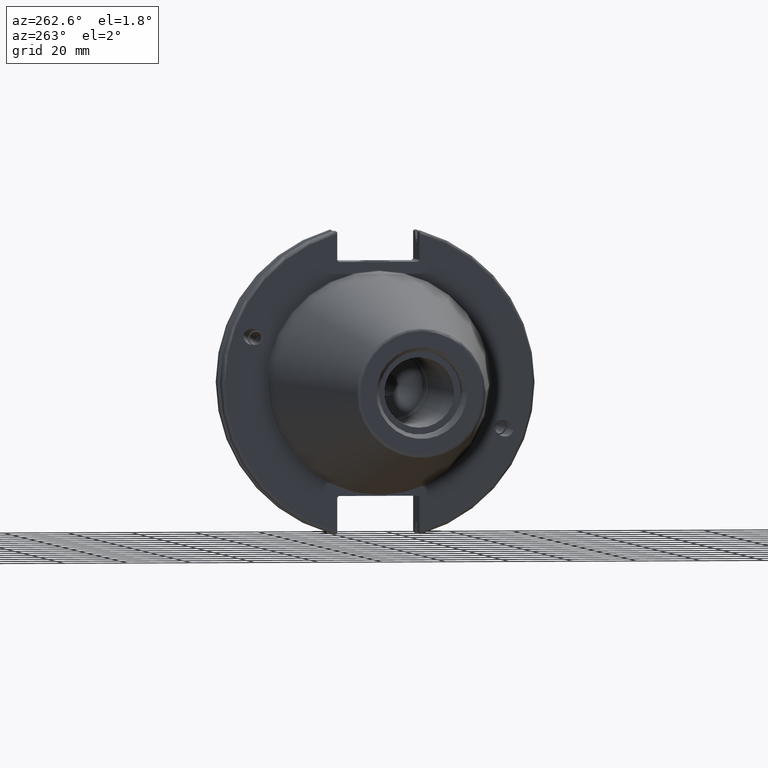
[diagram: clean part render]
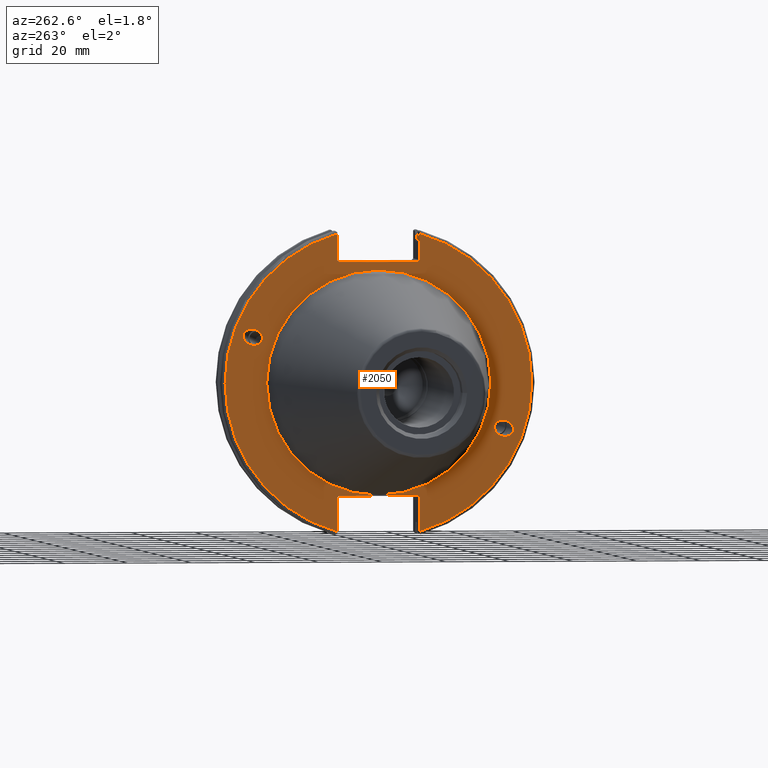
[diagram: same view with one face highlighted and labeled with its STEP entity id]
A machine part, auxiliary view. The second image highlights one B-rep face of the part: STEP entity #2050.
In plain terms, the highlighted planar face has unit normal (-1, 0, 0).
Its self-contained STEP definition (entity closure, byte-faithful):
#31=ELLIPSE('',#2247,3.05193647190364,2.5);
#32=ELLIPSE('',#2286,3.05193647190364,2.5);
#44=PLANE('',#2304);
#117=FACE_BOUND('',#335,.T.);
#118=FACE_BOUND('',#336,.T.);
#119=FACE_BOUND('',#337,.T.);
#219=FACE_OUTER_BOUND('',#334,.T.);
#334=EDGE_LOOP('',(#1687,#1688,#1689,#1690,#1691,#1692,#1693,#1694,#1695,
#1696,#1697,#1698));
#335=EDGE_LOOP('',(#1699));
#336=EDGE_LOOP('',(#1700));
#337=EDGE_LOOP('',(#1701,#1702));
#429=LINE('',#3828,#530);
#430=LINE('',#3830,#531);
#431=LINE('',#3832,#532);
#432=LINE('',#3834,#533);
#433=LINE('',#3836,#534);
#434=LINE('',#3840,#535);
#435=LINE('',#3842,#536);
#436=LINE('',#3844,#537);
#437=LINE('',#3846,#538);
#438=LINE('',#3847,#539);
#530=VECTOR('',#2811,10.);
#531=VECTOR('',#2812,10.);
#532=VECTOR('',#2813,10.);
#533=VECTOR('',#2814,10.);
#534=VECTOR('',#2815,10.);
#535=VECTOR('',#2818,10.);
#536=VECTOR('',#2819,10.);
#537=VECTOR('',#2820,10.);
#538=VECTOR('',#2821,10.);
#539=VECTOR('',#2822,10.);
#714=CIRCLE('',#2300,35.125);
#715=CIRCLE('',#2301,35.125);
#718=CIRCLE('',#2305,48.2125);
#719=CIRCLE('',#2306,48.2125);
#859=VERTEX_POINT('',#3519);
#902=VERTEX_POINT('',#3788);
#911=VERTEX_POINT('',#3815);
#912=VERTEX_POINT('',#3817);
#914=VERTEX_POINT('',#3824);
#915=VERTEX_POINT('',#3825);
#916=VERTEX_POINT('',#3827);
#917=VERTEX_POINT('',#3829);
#918=VERTEX_POINT('',#3831);
#919=VERTEX_POINT('',#3833);
#920=VERTEX_POINT('',#3835);
#921=VERTEX_POINT('',#3837);
#922=VERTEX_POINT('',#3839);
#923=VERTEX_POINT('',#3841);
#924=VERTEX_POINT('',#3843);
#925=VERTEX_POINT('',#3845);
#1122=EDGE_CURVE('',#859,#859,#31,.T.);
#1178=EDGE_CURVE('',#902,#902,#32,.T.);
#1191=EDGE_CURVE('',#911,#912,#714,.T.);
#1192=EDGE_CURVE('',#912,#911,#715,.T.);
#1195=EDGE_CURVE('',#914,#915,#718,.T.);
#1196=EDGE_CURVE('',#914,#916,#429,.T.);
#1197=EDGE_CURVE('',#917,#916,#430,.T.);
#1198=EDGE_CURVE('',#917,#918,#431,.T.);
#1199=EDGE_CURVE('',#919,#918,#432,.T.);
#1200=EDGE_CURVE('',#919,#920,#433,.T.);
#1201=EDGE_CURVE('',#921,#920,#719,.T.);
#1202=EDGE_CURVE('',#921,#922,#434,.T.);
#1203=EDGE_CURVE('',#923,#922,#435,.T.);
#1204=EDGE_CURVE('',#923,#924,#436,.T.);
#1205=EDGE_CURVE('',#925,#924,#437,.T.);
#1206=EDGE_CURVE('',#925,#915,#438,.T.);
#1687=ORIENTED_EDGE('',*,*,#1195,.F.);
#1688=ORIENTED_EDGE('',*,*,#1196,.T.);
#1689=ORIENTED_EDGE('',*,*,#1197,.F.);
#1690=ORIENTED_EDGE('',*,*,#1198,.T.);
#1691=ORIENTED_EDGE('',*,*,#1199,.F.);
#1692=ORIENTED_EDGE('',*,*,#1200,.T.);
#1693=ORIENTED_EDGE('',*,*,#1201,.F.);
#1694=ORIENTED_EDGE('',*,*,#1202,.T.);
#1695=ORIENTED_EDGE('',*,*,#1203,.F.);
#1696=ORIENTED_EDGE('',*,*,#1204,.T.);
#1697=ORIENTED_EDGE('',*,*,#1205,.F.);
#1698=ORIENTED_EDGE('',*,*,#1206,.T.);
#1699=ORIENTED_EDGE('',*,*,#1122,.T.);
#1700=ORIENTED_EDGE('',*,*,#1178,.T.);
#1701=ORIENTED_EDGE('',*,*,#1192,.F.);
#1702=ORIENTED_EDGE('',*,*,#1191,.F.);
#2050=ADVANCED_FACE('',(#219,#117,#118,#119),#44,.T.);
#2247=AXIS2_PLACEMENT_3D('',#3521,#2673,#2674);
#2286=AXIS2_PLACEMENT_3D('',#3790,#2767,#2768);
#2300=AXIS2_PLACEMENT_3D('',#3818,#2799,#2800);
#2301=AXIS2_PLACEMENT_3D('',#3819,#2801,#2802);
#2304=AXIS2_PLACEMENT_3D('',#3823,#2807,#2808);
#2305=AXIS2_PLACEMENT_3D('',#3826,#2809,#2810);
#2306=AXIS2_PLACEMENT_3D('',#3838,#2816,#2817);
#2673=DIRECTION('center_axis',(1.,0.,0.));
#2674=DIRECTION('ref_axis',(0.,-0.939692620785907,-0.342020143325671));
#2767=DIRECTION('center_axis',(1.,0.,0.));
#2768=DIRECTION('ref_axis',(0.,0.939692620785907,0.342020143325672));
#2799=DIRECTION('center_axis',(-1.,0.,0.));
#2800=DIRECTION('ref_axis',(0.,-1.,1.83697019872103E-16));
#2801=DIRECTION('center_axis',(-1.,0.,0.));
#2802=DIRECTION('ref_axis',(0.,-1.,1.83697019872103E-16));
#2807=DIRECTION('center_axis',(-1.,0.,0.));
#2808=DIRECTION('ref_axis',(0.,0.,1.));
#2809=DIRECTION('center_axis',(1.,0.,0.));
#2810=DIRECTION('ref_axis',(0.,-1.,1.60812264967664E-16));
#2811=DIRECTION('',(0.,0.,-1.));
#2812=DIRECTION('',(0.,-0.707106781186549,0.707106781186546));
#2813=DIRECTION('',(0.,1.,0.));
#2814=DIRECTION('',(0.,-0.707106781186549,-0.707106781186546));
#2815=DIRECTION('',(0.,0.,1.));
#2816=DIRECTION('center_axis',(1.,0.,0.));
#2817=DIRECTION('ref_axis',(0.,1.,-6.12323399573677E-17));
#2818=DIRECTION('',(0.,0.,1.));
#2819=DIRECTION('',(0.,0.707106781186549,-0.707106781186546));
#2820=DIRECTION('',(0.,-1.,0.));
#2821=DIRECTION('',(0.,0.707106781186549,0.707106781186546));
#2822=DIRECTION('',(0.,0.,-1.));
#3519=CARTESIAN_POINT('',(3.175,-36.5992078912529,-13.3210222701368));
#3521=CARTESIAN_POINT('Origin',(3.175,-39.4670900730082,-14.3648460196781));
#3788=CARTESIAN_POINT('',(3.175,36.5992078912529,13.3210222701368));
#3790=CARTESIAN_POINT('Origin',(3.175,39.4670900730082,14.3648460196781));
#3815=CARTESIAN_POINT('',(3.175,-4.30157188200508E-15,35.125));
#3817=CARTESIAN_POINT('',(3.175,35.125,-1.07539297050127E-14));
#3818=CARTESIAN_POINT('Origin',(3.175,0.,0.));
#3819=CARTESIAN_POINT('Origin',(3.175,0.,0.));
#3823=CARTESIAN_POINT('Origin',(3.175,49.2125,0.));
#3824=CARTESIAN_POINT('',(3.175,-12.95,46.4407434937254));
#3825=CARTESIAN_POINT('',(3.175,-12.95,-46.4407434937254));
#3826=CARTESIAN_POINT('Origin',(3.175,0.,0.));
#3827=CARTESIAN_POINT('',(3.175,-12.95,38.219));
#3828=CARTESIAN_POINT('',(3.175,-12.95,18.8595));
#3829=CARTESIAN_POINT('',(3.175,-12.45,37.719));
#3830=CARTESIAN_POINT('',(3.175,12.2703750000001,12.998625));
#3831=CARTESIAN_POINT('',(3.175,12.45,37.719));
#3832=CARTESIAN_POINT('',(3.175,24.60625,37.719));
#3833=CARTESIAN_POINT('',(3.175,12.95,38.219));
#3834=CARTESIAN_POINT('',(3.175,12.335875,37.604875));
#3835=CARTESIAN_POINT('',(3.175,12.95,46.4407434937254));
#3836=CARTESIAN_POINT('',(3.175,12.95,18.8595));
#3837=CARTESIAN_POINT('',(3.175,12.95,-46.4407434937254));
#3838=CARTESIAN_POINT('Origin',(3.175,0.,0.));
#3839=CARTESIAN_POINT('',(3.175,12.95,-35.806));
#3840=CARTESIAN_POINT('',(3.175,12.95,-17.653));
#3841=CARTESIAN_POINT('',(3.175,12.45,-35.306));
#3842=CARTESIAN_POINT('',(3.175,12.939125,-35.795125));
#3843=CARTESIAN_POINT('',(3.175,-12.45,-35.306));
#3844=CARTESIAN_POINT('',(3.175,24.60625,-35.306));
#3845=CARTESIAN_POINT('',(3.175,-12.95,-35.806));
#3846=CARTESIAN_POINT('',(3.175,11.6671250000001,-11.188875));
#3847=CARTESIAN_POINT('',(3.175,-12.95,-17.653));